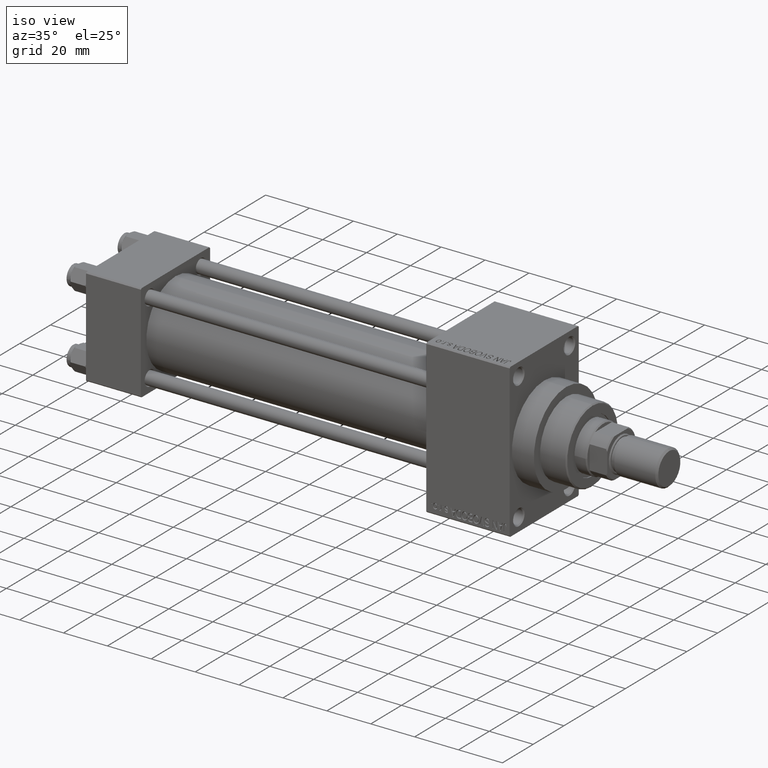
[diagram: clean part render]
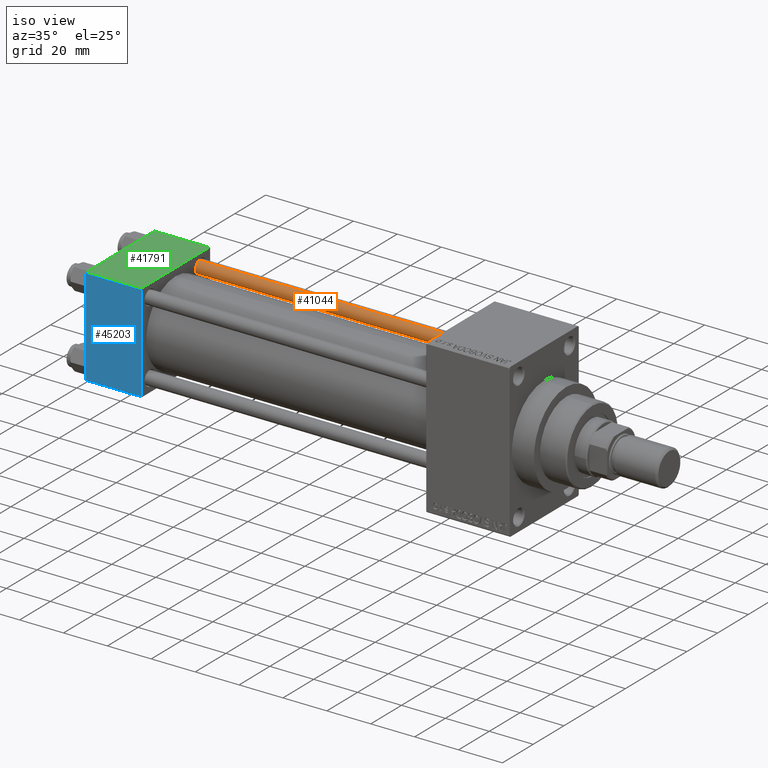
[diagram: same view with three faces highlighted in distinct colors, each labeled with its STEP entity id]
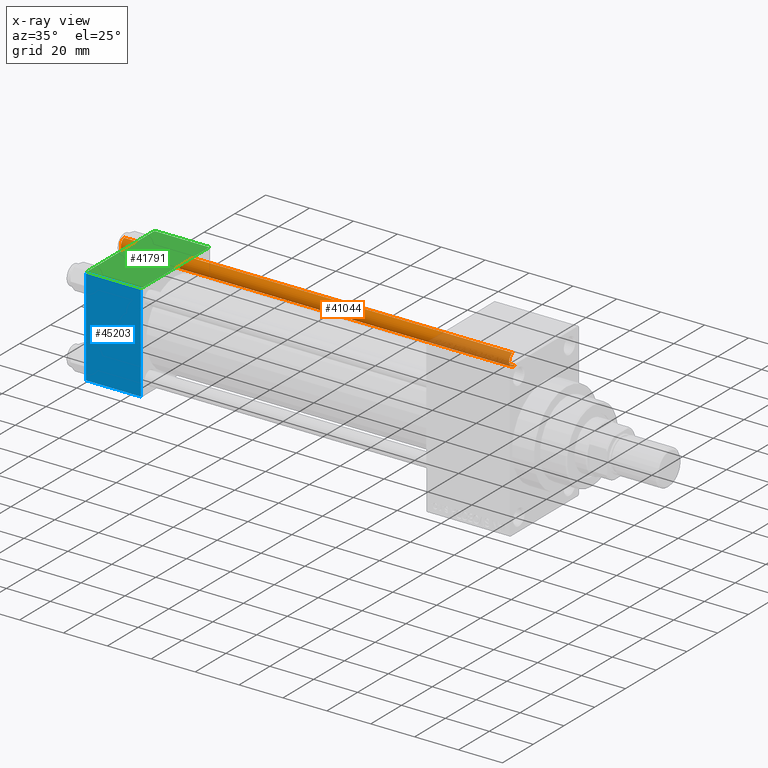
[diagram: x-ray of the same camera — body ghosted, the three highlighted faces saturated]
A machine part, iso view with three faces highlighted in distinct colors.
The next image is the same camera in x-ray (body ghosted, the three faces saturated) — at least one of them is partly hidden behind the body in this view.
Their STEP definitions:

[orange] entity #41044 — the highlighted cylindrical surface (edge-blend (fillet) strip) has radius 3 mm, axis along (-1, -0, 0).
#787 = DIRECTION ( 'NONE',  ( 1.000000000000000000, 0.000000000000000000, 0.000000000000000000 ) ) ;
#1291 = EDGE_CURVE ( 'NONE', #7930, #20430, #31255, .T. ) ;
#2320 = DIRECTION ( 'NONE',  ( -1.000000000000000000, 0.000000000000000000, 0.000000000000000000 ) ) ;
#2594 = ORIENTED_EDGE ( 'NONE', *, *, #7385, .T. ) ;
#6490 = CARTESIAN_POINT ( 'NONE',  ( 3.000000000000000444, 3.673940397442060361E-16, 178.0000000000000000 ) ) ;
#7385 = EDGE_CURVE ( 'NONE', #8693, #34010, #9146, .T. ) ;
#7930 = VERTEX_POINT ( 'NONE', #32428 ) ;
#8693 = VERTEX_POINT ( 'NONE', #42778 ) ;
#9146 = CIRCLE ( 'NONE', #13764, 3.000000000000000444 ) ;
#9873 = DIRECTION ( 'NONE',  ( -0.000000000000000000, -0.000000000000000000, -1.000000000000000000 ) ) ;
#10468 = AXIS2_PLACEMENT_3D ( 'NONE', #40533, #26562, #787 ) ;
#13053 = FACE_OUTER_BOUND ( 'NONE', #28258, .T. ) ;
#13764 = AXIS2_PLACEMENT_3D ( 'NONE', #30588, #37792, #45230 ) ;
#16170 = AXIS2_PLACEMENT_3D ( 'NONE', #42907, #17016, #2320 ) ;
#16632 = LINE ( 'NONE', #46883, #18976 ) ;
#17016 = DIRECTION ( 'NONE',  ( -0.000000000000000000, -0.000000000000000000, -1.000000000000000000 ) ) ;
#17155 = CYLINDRICAL_SURFACE ( 'NONE', #16170, 3.000000000000000444 ) ;
#18976 = VECTOR ( 'NONE', #19787, 1000.000000000000000 ) ;
#19787 = DIRECTION ( 'NONE',  ( -0.000000000000000000, -0.000000000000000000, -1.000000000000000000 ) ) ;
#20430 = VERTEX_POINT ( 'NONE', #42201 ) ;
#21760 = ORIENTED_EDGE ( 'NONE', *, *, #31623, .T. ) ;
#23008 = EDGE_CURVE ( 'NONE', #7930, #34010, #24828, .T. ) ;
#24828 = LINE ( 'NONE', #6490, #33397 ) ;
#26562 = DIRECTION ( 'NONE',  ( 0.000000000000000000, 0.000000000000000000, -1.000000000000000000 ) ) ;
#28258 = EDGE_LOOP ( 'NONE', ( #42994, #33923, #21760, #2594 ) ) ;
#30588 = CARTESIAN_POINT ( 'NONE',  ( 0.000000000000000000, 0.000000000000000000, 0.5000000000000281997 ) ) ;
#31255 = CIRCLE ( 'NONE', #10468, 3.000000000000000444 ) ;
#31623 = EDGE_CURVE ( 'NONE', #20430, #8693, #16632, .T. ) ;
#32428 = CARTESIAN_POINT ( 'NONE',  ( 3.000000000000000444, 3.673940397442060361E-16, 177.5000000000000000 ) ) ;
#33397 = VECTOR ( 'NONE', #9873, 1000.000000000000000 ) ;
#33923 = ORIENTED_EDGE ( 'NONE', *, *, #1291, .T. ) ;
#34010 = VERTEX_POINT ( 'NONE', #37263 ) ;
#37263 = CARTESIAN_POINT ( 'NONE',  ( 3.000000000000000444, 3.673940397442060361E-16, 0.5000000000000281997 ) ) ;
#37792 = DIRECTION ( 'NONE',  ( -0.000000000000000000, -0.000000000000000000, 1.000000000000000000 ) ) ;
#40533 = CARTESIAN_POINT ( 'NONE',  ( 0.000000000000000000, 0.000000000000000000, 177.5000000000000000 ) ) ;
#41044 = ADVANCED_FACE ( 'NONE', ( #13053 ), #17155, .T. ) ;
#42201 = CARTESIAN_POINT ( 'NONE',  ( -3.000000000000000444, 0.000000000000000000, 177.5000000000000000 ) ) ;
#42778 = CARTESIAN_POINT ( 'NONE',  ( -3.000000000000000444, 0.000000000000000000, 0.5000000000000281997 ) ) ;
#42907 = CARTESIAN_POINT ( 'NONE',  ( 0.000000000000000000, 0.000000000000000000, 178.0000000000000000 ) ) ;
#42994 = ORIENTED_EDGE ( 'NONE', *, *, #23008, .F. ) ;
#45230 = DIRECTION ( 'NONE',  ( 1.000000000000000000, 0.000000000000000000, 0.000000000000000000 ) ) ;
#46883 = CARTESIAN_POINT ( 'NONE',  ( -3.000000000000000444, 0.000000000000000000, 178.0000000000000000 ) ) ;

[blue] entity #45203 — the highlighted planar face has unit normal (0, 1, 0).
#520 = ORIENTED_EDGE ( 'NONE', *, *, #32691, .F. ) ;
#793 = DIRECTION ( 'NONE',  ( 0.000000000000000000, -0.000000000000000000, 1.000000000000000000 ) ) ;
#1248 = VECTOR ( 'NONE', #9597, 1000.000000000000000 ) ;
#3686 = CARTESIAN_POINT ( 'NONE',  ( 25.00000000000000000, -22.50000000000000000, -21.99999999999997158 ) ) ;
#3937 = CARTESIAN_POINT ( 'NONE',  ( 25.00000000000000000, -22.50000000000000000, 22.50000000000000000 ) ) ;
#6566 = CARTESIAN_POINT ( 'NONE',  ( 0.000000000000000000, -22.50000000000000000, -21.99999999999997158 ) ) ;
#7266 = VERTEX_POINT ( 'NONE', #6566 ) ;
#7673 = AXIS2_PLACEMENT_3D ( 'NONE', #3937, #26568, #793 ) ;
#8400 = LINE ( 'NONE', #40926, #30464 ) ;
#8472 = VERTEX_POINT ( 'NONE', #29433 ) ;
#9597 = DIRECTION ( 'NONE',  ( 0.000000000000000000, 0.000000000000000000, -1.000000000000000000 ) ) ;
#12434 = VERTEX_POINT ( 'NONE', #3686 ) ;
#12671 = ORIENTED_EDGE ( 'NONE', *, *, #29292, .T. ) ;
#15355 = CARTESIAN_POINT ( 'NONE',  ( 0.000000000000000000, -22.50000000000000000, 22.50000000000000000 ) ) ;
#18745 = DIRECTION ( 'NONE',  ( 0.000000000000000000, 0.000000000000000000, -1.000000000000000000 ) ) ;
#19108 = PLANE ( 'NONE',  #7673 ) ;
#20468 = CARTESIAN_POINT ( 'NONE',  ( 25.00000000000000000, -22.50000000000000000, 22.50000000000000000 ) ) ;
#22211 = EDGE_CURVE ( 'NONE', #7266, #12434, #30153, .T. ) ;
#22953 = FACE_OUTER_BOUND ( 'NONE', #38585, .T. ) ;
#23794 = VERTEX_POINT ( 'NONE', #45515 ) ;
#26361 = ORIENTED_EDGE ( 'NONE', *, *, #34039, .T. ) ;
#26485 = DIRECTION ( 'NONE',  ( -1.000000000000000000, 0.000000000000000000, 0.000000000000000000 ) ) ;
#26568 = DIRECTION ( 'NONE',  ( -0.000000000000000000, 1.000000000000000000, 0.000000000000000000 ) ) ;
#27000 = DIRECTION ( 'NONE',  ( 1.000000000000000000, 0.000000000000000000, 0.000000000000000000 ) ) ;
#29292 = EDGE_CURVE ( 'NONE', #8472, #23794, #8400, .T. ) ;
#29433 = CARTESIAN_POINT ( 'NONE',  ( 25.00000000000000000, -22.50000000000000000, 22.00000000000000000 ) ) ;
#30153 = LINE ( 'NONE', #41431, #34106 ) ;
#30464 = VECTOR ( 'NONE', #26485, 1000.000000000000000 ) ;
#32691 = EDGE_CURVE ( 'NONE', #8472, #12434, #45949, .T. ) ;
#34039 = EDGE_CURVE ( 'NONE', #23794, #7266, #47615, .T. ) ;
#34106 = VECTOR ( 'NONE', #27000, 1000.000000000000000 ) ;
#35937 = VECTOR ( 'NONE', #18745, 1000.000000000000000 ) ;
#38585 = EDGE_LOOP ( 'NONE', ( #26361, #45450, #520, #12671 ) ) ;
#40926 = CARTESIAN_POINT ( 'NONE',  ( 25.00000000000000000, -22.50000000000000000, 22.00000000000000000 ) ) ;
#41431 = CARTESIAN_POINT ( 'NONE',  ( 25.00000000000000000, -22.50000000000000000, -21.99999999999998579 ) ) ;
#45203 = ADVANCED_FACE ( 'NONE', ( #22953 ), #19108, .F. ) ;
#45450 = ORIENTED_EDGE ( 'NONE', *, *, #22211, .T. ) ;
#45515 = CARTESIAN_POINT ( 'NONE',  ( 0.000000000000000000, -22.50000000000000000, 22.00000000000000000 ) ) ;
#45949 = LINE ( 'NONE', #20468, #1248 ) ;
#47615 = LINE ( 'NONE', #15355, #35937 ) ;

[green] entity #41791 — the highlighted planar face has unit normal (0, 0, -1).
#620 = DIRECTION ( 'NONE',  ( 0.000000000000000000, -1.000000000000000000, -7.709882115452476934E-17 ) ) ;
#942 = CARTESIAN_POINT ( 'NONE',  ( 0.000000000000000000, -21.99999999999997868, 22.50000000000000000 ) ) ;
#3888 = CARTESIAN_POINT ( 'NONE',  ( 0.000000000000000000, 22.50000000000000000, 22.50000000000000355 ) ) ;
#7881 = EDGE_LOOP ( 'NONE', ( #32421, #20696, #12582, #11321 ) ) ;
#8236 = PLANE ( 'NONE',  #15315 ) ;
#11321 = ORIENTED_EDGE ( 'NONE', *, *, #25525, .T. ) ;
#12062 = DIRECTION ( 'NONE',  ( 1.000000000000000000, 0.000000000000000000, 0.000000000000000000 ) ) ;
#12582 = ORIENTED_EDGE ( 'NONE', *, *, #15103, .F. ) ;
#15080 = VECTOR ( 'NONE', #12062, 1000.000000000000000 ) ;
#15103 = EDGE_CURVE ( 'NONE', #26499, #15584, #15549, .T. ) ;
#15315 = AXIS2_PLACEMENT_3D ( 'NONE', #29942, #45059, #34019 ) ;
#15549 = LINE ( 'NONE', #16007, #20091 ) ;
#15584 = VERTEX_POINT ( 'NONE', #33926 ) ;
#15678 = LINE ( 'NONE', #22455, #15080 ) ;
#16007 = CARTESIAN_POINT ( 'NONE',  ( 25.00000000000000000, 22.50000000000000000, 22.50000000000000355 ) ) ;
#17320 = VECTOR ( 'NONE', #23145, 1000.000000000000000 ) ;
#19569 = FACE_OUTER_BOUND ( 'NONE', #7881, .T. ) ;
#20091 = VECTOR ( 'NONE', #620, 1000.000000000000000 ) ;
#20696 = ORIENTED_EDGE ( 'NONE', *, *, #27918, .T. ) ;
#21975 = CARTESIAN_POINT ( 'NONE',  ( 0.000000000000000000, 21.99999999999999289, 22.50000000000000355 ) ) ;
#22455 = CARTESIAN_POINT ( 'NONE',  ( 25.00000000000000000, -21.99999999999999289, 22.50000000000000000 ) ) ;
#23145 = DIRECTION ( 'NONE',  ( 0.000000000000000000, -1.000000000000000000, -7.709882115452476934E-17 ) ) ;
#25525 = EDGE_CURVE ( 'NONE', #26499, #30918, #32811, .T. ) ;
#25641 = EDGE_CURVE ( 'NONE', #30918, #47232, #30615, .T. ) ;
#26499 = VERTEX_POINT ( 'NONE', #33293 ) ;
#27918 = EDGE_CURVE ( 'NONE', #47232, #15584, #15678, .T. ) ;
#29942 = CARTESIAN_POINT ( 'NONE',  ( 25.00000000000000000, 22.50000000000000000, 22.50000000000000355 ) ) ;
#30615 = LINE ( 'NONE', #3888, #17320 ) ;
#30918 = VERTEX_POINT ( 'NONE', #34282 ) ;
#32327 = DIRECTION ( 'NONE',  ( -1.000000000000000000, 0.000000000000000000, 0.000000000000000000 ) ) ;
#32421 = ORIENTED_EDGE ( 'NONE', *, *, #25641, .T. ) ;
#32811 = LINE ( 'NONE', #21975, #35030 ) ;
#33293 = CARTESIAN_POINT ( 'NONE',  ( 25.00000000000000000, 21.99999999999999289, 22.50000000000000355 ) ) ;
#33926 = CARTESIAN_POINT ( 'NONE',  ( 25.00000000000000000, -21.99999999999997868, 22.50000000000000000 ) ) ;
#34019 = DIRECTION ( 'NONE',  ( 0.000000000000000000, 1.000000000000000000, 7.709882115452476934E-17 ) ) ;
#34282 = CARTESIAN_POINT ( 'NONE',  ( 0.000000000000000000, 21.99999999999999289, 22.50000000000000355 ) ) ;
#35030 = VECTOR ( 'NONE', #32327, 1000.000000000000000 ) ;
#41791 = ADVANCED_FACE ( 'NONE', ( #19569 ), #8236, .F. ) ;
#45059 = DIRECTION ( 'NONE',  ( 0.000000000000000000, 7.709882115452476934E-17, -1.000000000000000000 ) ) ;
#47232 = VERTEX_POINT ( 'NONE', #942 ) ;